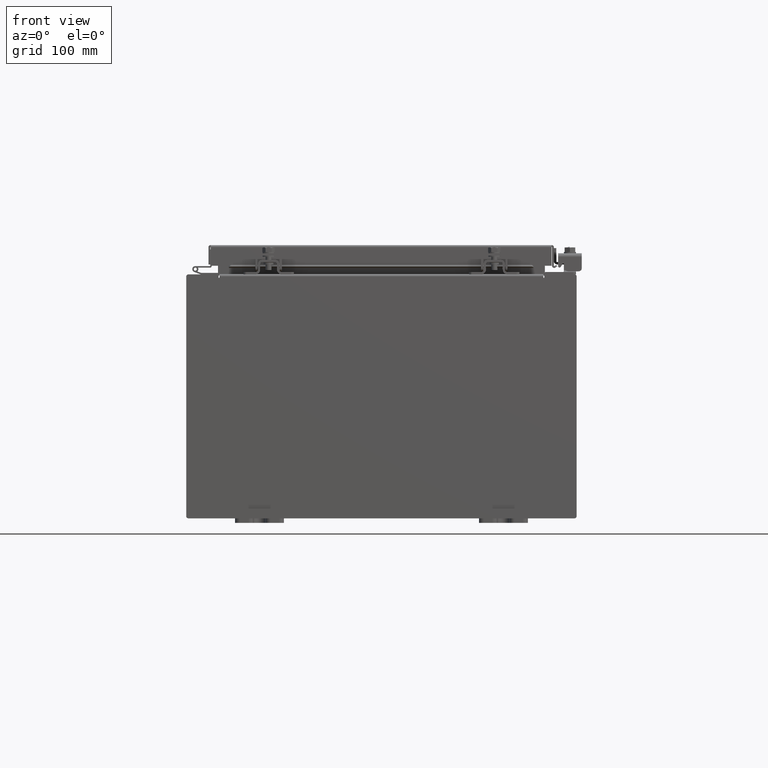
[diagram: clean part render]
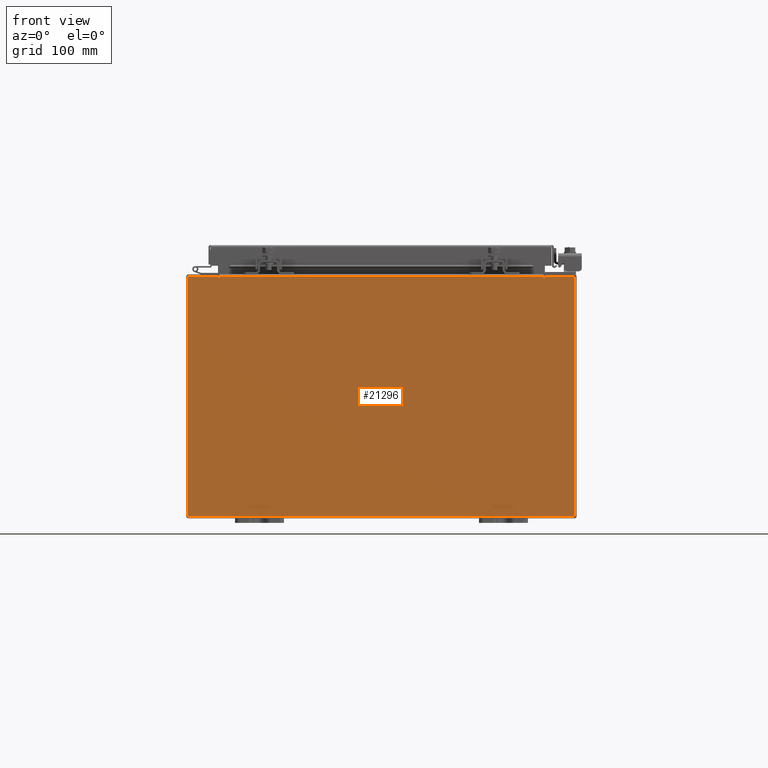
[diagram: same view with one face highlighted and labeled with its STEP entity id]
A machine part, front view. The second image highlights one B-rep face of the part: STEP entity #21296.
In plain terms, the highlighted planar face has unit normal (-0, 1, -0).
Its self-contained STEP definition (entity closure, byte-faithful):
#22 = CARTESIAN_POINT ( 'NONE',  ( -7.925300000000002700, 0.0000000000000000000, 4.925300000000000900 ) ) ;
#43 = EDGE_CURVE ( 'NONE', #23441, #16633, #22146, .T. ) ;
#507 = CARTESIAN_POINT ( 'NONE',  ( 6.637199999999997300, 0.0000000000000000000, 4.874950000000001000 ) ) ;
#1251 = CARTESIAN_POINT ( 'NONE',  ( -6.637200000000000900, -0.0000000000000000000, 0.0000000000000000000 ) ) ;
#1464 = EDGE_CURVE ( 'NONE', #10024, #9873, #14573, .T. ) ;
#1735 = ORIENTED_EDGE ( 'NONE', *, *, #17732, .F. ) ;
#1742 = PLANE ( 'NONE',  #10670 ) ;
#2275 = CIRCLE ( 'NONE', #13528, 0.01867500000000003900 ) ;
#2340 = ORIENTED_EDGE ( 'NONE', *, *, #13746, .F. ) ;
#2350 = DIRECTION ( 'NONE',  ( 1.000000000000000000, 0.0000000000000000000, 0.0000000000000000000 ) ) ;
#2427 = DIRECTION ( 'NONE',  ( 0.0000000000000000000, 0.0000000000000000000, 1.000000000000000000 ) ) ;
#2783 = ORIENTED_EDGE ( 'NONE', *, *, #43, .F. ) ;
#3049 = LINE ( 'NONE', #14841, #20469 ) ;
#3636 = LINE ( 'NONE', #19122, #15689 ) ;
#3713 = CARTESIAN_POINT ( 'NONE',  ( 6.674549999999998200, 0.0000000000000000000, 4.925300000000000900 ) ) ;
#3804 = VERTEX_POINT ( 'NONE', #3713 ) ;
#4167 = DIRECTION ( 'NONE',  ( 0.0000000000000000000, -1.000000000000000000, 0.0000000000000000000 ) ) ;
#4240 = VERTEX_POINT ( 'NONE', #17653 ) ;
#4325 = CARTESIAN_POINT ( 'NONE',  ( 6.674549999999999100, 0.0000000000000000000, 0.0000000000000000000 ) ) ;
#4550 = VERTEX_POINT ( 'NONE', #14504 ) ;
#4662 = ORIENTED_EDGE ( 'NONE', *, *, #6566, .T. ) ;
#4722 = LINE ( 'NONE', #4325, #21387 ) ;
#4748 = EDGE_CURVE ( 'NONE', #11376, #9873, #9078, .T. ) ;
#4908 = LINE ( 'NONE', #18414, #23018 ) ;
#5134 = ORIENTED_EDGE ( 'NONE', *, *, #16955, .T. ) ;
#5773 = CARTESIAN_POINT ( 'NONE',  ( 7.925299999999996500, 0.0000000000000000000, 4.925300000000000900 ) ) ;
#5786 = DIRECTION ( 'NONE',  ( 1.000000000000000000, 0.0000000000000000000, 0.0000000000000000000 ) ) ;
#5824 = CARTESIAN_POINT ( 'NONE',  ( -7.925300000000002700, 0.0000000000000000000, 4.925300000000000900 ) ) ;
#6566 = EDGE_CURVE ( 'NONE', #4240, #10024, #3636, .T. ) ;
#7895 = CARTESIAN_POINT ( 'NONE',  ( -6.674550000000000900, 0.0000000000000000000, 4.925300000000000900 ) ) ;
#7901 = DIRECTION ( 'NONE',  ( -0.0000000000000000000, -0.0000000000000000000, 1.000000000000000000 ) ) ;
#8746 = VERTEX_POINT ( 'NONE', #19028 ) ;
#9078 = LINE ( 'NONE', #14029, #13674 ) ;
#9640 = CARTESIAN_POINT ( 'NONE',  ( -6.637200000000000900, -1.707404996040164500E-016, 4.912300000000001000 ) ) ;
#9873 = VERTEX_POINT ( 'NONE', #7895 ) ;
#10024 = VERTEX_POINT ( 'NONE', #21934 ) ;
#10114 = VECTOR ( 'NONE', #19736, 39.37007874015748100 ) ;
#10161 = CARTESIAN_POINT ( 'NONE',  ( -6.674550000000000900, 0.0000000000000000000, 4.874950000000001000 ) ) ;
#10319 = CARTESIAN_POINT ( 'NONE',  ( -6.655875000000000900, 0.0000000000000000000, 4.874950000000001000 ) ) ;
#10670 = AXIS2_PLACEMENT_3D ( 'NONE', #13162, #4167, #20023 ) ;
#10739 = ORIENTED_EDGE ( 'NONE', *, *, #15400, .F. ) ;
#11140 = EDGE_CURVE ( 'NONE', #19902, #16633, #4908, .T. ) ;
#11376 = VERTEX_POINT ( 'NONE', #10161 ) ;
#11440 = AXIS2_PLACEMENT_3D ( 'NONE', #26850, #13253, #29141 ) ;
#11973 = EDGE_CURVE ( 'NONE', #13681, #4240, #3049, .T. ) ;
#12247 = CARTESIAN_POINT ( 'NONE',  ( 7.925299999999996500, 0.0000000000000000000, 4.925300000000000900 ) ) ;
#12569 = DIRECTION ( 'NONE',  ( 0.0000000000000000000, 0.0000000000000000000, -1.000000000000000000 ) ) ;
#12587 = DIRECTION ( 'NONE',  ( 0.0000000000000000000, 0.0000000000000000000, -1.000000000000000000 ) ) ;
#13162 = CARTESIAN_POINT ( 'NONE',  ( 0.0000000000000000000, 0.0000000000000000000, 0.0000000000000000000 ) ) ;
#13253 = DIRECTION ( 'NONE',  ( -0.0000000000000000000, 1.000000000000000000, -0.0000000000000000000 ) ) ;
#13528 = AXIS2_PLACEMENT_3D ( 'NONE', #10319, #26184, #12569 ) ;
#13674 = VECTOR ( 'NONE', #2427, 39.37007874015748100 ) ;
#13681 = VERTEX_POINT ( 'NONE', #25801 ) ;
#13746 = EDGE_CURVE ( 'NONE', #4550, #11376, #2275, .T. ) ;
#13920 = EDGE_CURVE ( 'NONE', #8746, #23441, #15415, .T. ) ;
#14029 = CARTESIAN_POINT ( 'NONE',  ( -6.674550000000000900, -0.0000000000000000000, 0.0000000000000000000 ) ) ;
#14504 = CARTESIAN_POINT ( 'NONE',  ( -6.637200000000000900, -0.0000000000000000000, 4.874950000000001000 ) ) ;
#14573 = LINE ( 'NONE', #5824, #23535 ) ;
#14803 = ORIENTED_EDGE ( 'NONE', *, *, #25123, .T. ) ;
#14841 = CARTESIAN_POINT ( 'NONE',  ( -7.925300000000002700, 0.0000000000000000000, -4.925299999999998200 ) ) ;
#15400 = EDGE_CURVE ( 'NONE', #3804, #8746, #4722, .T. ) ;
#15415 = CIRCLE ( 'NONE', #11440, 0.01867500000000003900 ) ;
#15689 = VECTOR ( 'NONE', #7901, 39.37007874015748100 ) ;
#15694 = DIRECTION ( 'NONE',  ( 0.0000000000000000000, 0.0000000000000000000, -1.000000000000000000 ) ) ;
#15848 = VECTOR ( 'NONE', #12587, 39.37007874015748100 ) ;
#16081 = ORIENTED_EDGE ( 'NONE', *, *, #1464, .T. ) ;
#16588 = LINE ( 'NONE', #1251, #15848 ) ;
#16633 = VERTEX_POINT ( 'NONE', #24883 ) ;
#16955 = EDGE_CURVE ( 'NONE', #23617, #13681, #28624, .T. ) ;
#17257 = ORIENTED_EDGE ( 'NONE', *, *, #4748, .F. ) ;
#17653 = CARTESIAN_POINT ( 'NONE',  ( -7.925300000000002700, 0.0000000000000000000, -4.925299999999998200 ) ) ;
#17667 = ORIENTED_EDGE ( 'NONE', *, *, #11140, .T. ) ;
#17732 = EDGE_CURVE ( 'NONE', #19902, #4550, #16588, .T. ) ;
#18414 = CARTESIAN_POINT ( 'NONE',  ( -6.637200000000000900, -1.707404996040164500E-016, 4.912300000000001000 ) ) ;
#19028 = CARTESIAN_POINT ( 'NONE',  ( 6.674549999999999100, 0.0000000000000000000, 4.874950000000001000 ) ) ;
#19122 = CARTESIAN_POINT ( 'NONE',  ( -7.925300000000002700, 0.0000000000000000000, 4.925300000000000900 ) ) ;
#19736 = DIRECTION ( 'NONE',  ( 0.0000000000000000000, 0.0000000000000000000, 1.000000000000000000 ) ) ;
#19902 = VERTEX_POINT ( 'NONE', #9640 ) ;
#20023 = DIRECTION ( 'NONE',  ( 0.0000000000000000000, -0.0000000000000000000, -1.000000000000000000 ) ) ;
#20469 = VECTOR ( 'NONE', #21602, 39.37007874015748100 ) ;
#21296 = ADVANCED_FACE ( 'NONE', ( #29516 ), #1742, .F. ) ;
#21387 = VECTOR ( 'NONE', #15694, 39.37007874015748100 ) ;
#21602 = DIRECTION ( 'NONE',  ( -1.000000000000000000, -0.0000000000000000000, -0.0000000000000000000 ) ) ;
#21934 = CARTESIAN_POINT ( 'NONE',  ( -7.925300000000002700, 0.0000000000000000000, 4.925300000000000900 ) ) ;
#22146 = LINE ( 'NONE', #23555, #10114 ) ;
#22610 = VECTOR ( 'NONE', #25857, 39.37007874015748100 ) ;
#22861 = VECTOR ( 'NONE', #2350, 39.37007874015748100 ) ;
#23018 = VECTOR ( 'NONE', #27419, 39.37007874015748100 ) ;
#23441 = VERTEX_POINT ( 'NONE', #507 ) ;
#23535 = VECTOR ( 'NONE', #5786, 39.37007874015748100 ) ;
#23555 = CARTESIAN_POINT ( 'NONE',  ( 6.637199999999999100, 0.0000000000000000000, 0.0000000000000000000 ) ) ;
#23592 = LINE ( 'NONE', #22, #22861 ) ;
#23617 = VERTEX_POINT ( 'NONE', #5773 ) ;
#24214 = ORIENTED_EDGE ( 'NONE', *, *, #11973, .T. ) ;
#24883 = CARTESIAN_POINT ( 'NONE',  ( 6.637199999999999100, 0.0000000000000000000, 4.912300000000001000 ) ) ;
#25123 = EDGE_CURVE ( 'NONE', #3804, #23617, #23592, .T. ) ;
#25801 = CARTESIAN_POINT ( 'NONE',  ( 7.925299999999996500, 0.0000000000000000000, -4.925299999999998200 ) ) ;
#25857 = DIRECTION ( 'NONE',  ( 0.0000000000000000000, 0.0000000000000000000, -1.000000000000000000 ) ) ;
#26184 = DIRECTION ( 'NONE',  ( -0.0000000000000000000, 1.000000000000000000, -0.0000000000000000000 ) ) ;
#26225 = ORIENTED_EDGE ( 'NONE', *, *, #13920, .F. ) ;
#26850 = CARTESIAN_POINT ( 'NONE',  ( 6.655874999999998200, 0.0000000000000000000, 4.874950000000001000 ) ) ;
#27419 = DIRECTION ( 'NONE',  ( 1.000000000000000000, 0.0000000000000000000, 0.0000000000000000000 ) ) ;
#28624 = LINE ( 'NONE', #12247, #22610 ) ;
#29141 = DIRECTION ( 'NONE',  ( 0.0000000000000000000, 0.0000000000000000000, -1.000000000000000000 ) ) ;
#29477 = EDGE_LOOP ( 'NONE', ( #17257, #2340, #1735, #17667, #2783, #26225, #10739, #14803, #5134, #24214, #4662, #16081 ) ) ;
#29516 = FACE_OUTER_BOUND ( 'NONE', #29477, .T. ) ;